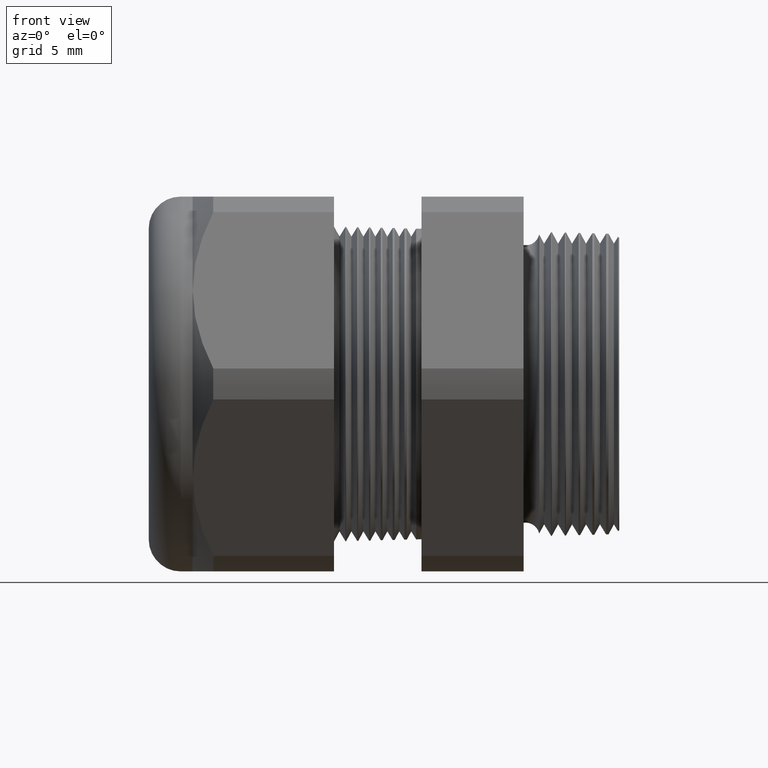
[diagram: clean part render]
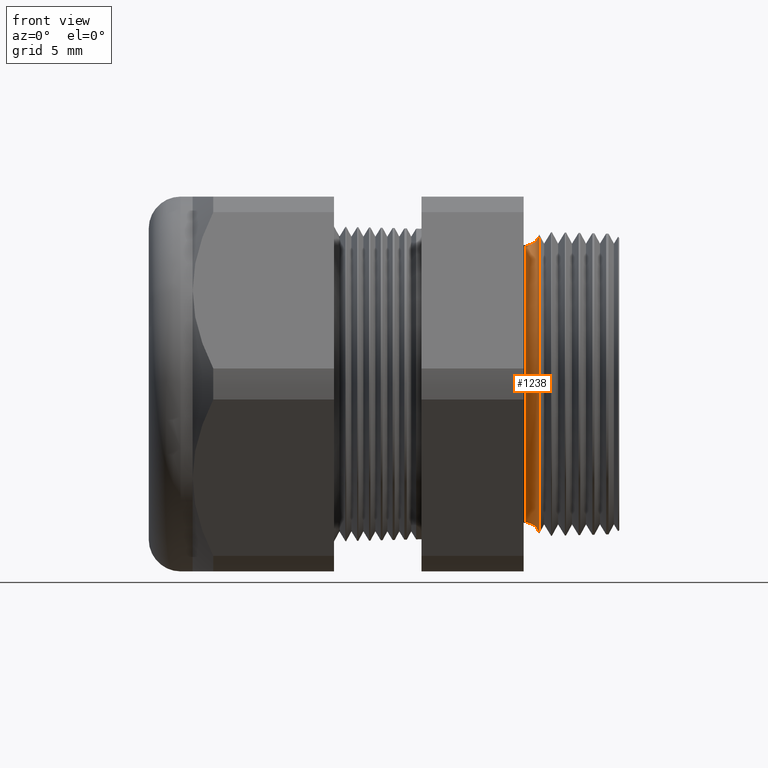
[diagram: same view with one face highlighted and labeled with its STEP entity id]
A machine part, front view. The second image highlights one B-rep face of the part: STEP entity #1238.
In plain terms, the highlighted toroidal blend (fillet) surface has major radius 9.7168 mm and minor (blend) radius 0.889 mm.
Its self-contained STEP definition (entity closure, byte-faithful):
#1168 = EDGE_CURVE ( 'NONE', #1169, #1227, #3360, .T. ) ;
#1169 = VERTEX_POINT ( 'NONE', #3355 ) ;
#1181 = ORIENTED_EDGE ( 'NONE', *, *, #1182, .T. ) ;
#1182 = EDGE_CURVE ( 'NONE', #1227, #1199, #3399, .T. ) ;
#1183 = ORIENTED_EDGE ( 'NONE', *, *, #1242, .F. ) ;
#1187 = EDGE_LOOP ( 'NONE', ( #1239, #1181, #1183, #1229 ) ) ;
#1198 = VERTEX_POINT ( 'NONE', #3376 ) ;
#1199 = VERTEX_POINT ( 'NONE', #3375 ) ;
#1227 = VERTEX_POINT ( 'NONE', #3446 ) ;
#1229 = ORIENTED_EDGE ( 'NONE', *, *, #1231, .F. ) ;
#1231 = EDGE_CURVE ( 'NONE', #1169, #1198, #3445, .T. ) ;
#1238 = ADVANCED_FACE ( 'NONE', ( #3491 ), #3490, .F. ) ;
#1239 = ORIENTED_EDGE ( 'NONE', *, *, #1168, .T. ) ;
#1242 = EDGE_CURVE ( 'NONE', #1198, #1199, #3485, .T. ) ;
#3355 = CARTESIAN_POINT ( 'NONE',  ( -0.2708463023710465100, 0.0000000000000000000, 0.3749001875325124200 ) ) ;
#3356 = DIRECTION ( 'NONE',  ( 0.0000000000000000000, 1.224646799147352700E-016, 1.000000000000000000 ) ) ;
#3357 = DIRECTION ( 'NONE',  ( 0.0000000000000000000, 1.000000000000000000, -1.224646799147353200E-016 ) ) ;
#3358 = CARTESIAN_POINT ( 'NONE',  ( -0.3049999999999999400, 4.684890578375549600E-017, 0.3825503468949049100 ) ) ;
#3359 = AXIS2_PLACEMENT_3D ( 'NONE', #3358, #3357, #3356 ) ;
#3360 = CIRCLE ( 'NONE', #3359, 0.03499999999999996900 ) ;
#3375 = CARTESIAN_POINT ( 'NONE',  ( -0.3049999999999999400, 0.0000000000000000000, -0.3475503468949049900 ) ) ;
#3376 = CARTESIAN_POINT ( 'NONE',  ( -0.2708463023710465100, 4.591203146614337800E-017, -0.3749001875325124200 ) ) ;
#3395 = DIRECTION ( 'NONE',  ( 0.0000000000000000000, 0.0000000000000000000, -1.000000000000000000 ) ) ;
#3396 = DIRECTION ( 'NONE',  ( 1.000000000000000000, 0.0000000000000000000, 0.0000000000000000000 ) ) ;
#3397 = CARTESIAN_POINT ( 'NONE',  ( -0.3049999999999999400, 0.0000000000000000000, 0.0000000000000000000 ) ) ;
#3398 = AXIS2_PLACEMENT_3D ( 'NONE', #3397, #3396, #3395 ) ;
#3399 = CIRCLE ( 'NONE', #3398, 0.3475503468949049900 ) ;
#3441 = DIRECTION ( 'NONE',  ( 0.0000000000000000000, 0.0000000000000000000, 1.000000000000000000 ) ) ;
#3442 = DIRECTION ( 'NONE',  ( 1.000000000000000000, 0.0000000000000000000, 0.0000000000000000000 ) ) ;
#3443 = CARTESIAN_POINT ( 'NONE',  ( -0.2708463023710465100, 0.0000000000000000000, 0.0000000000000000000 ) ) ;
#3444 = AXIS2_PLACEMENT_3D ( 'NONE', #3443, #3442, #3441 ) ;
#3445 = CIRCLE ( 'NONE', #3444, 0.3749001875325124200 ) ;
#3446 = CARTESIAN_POINT ( 'NONE',  ( -0.3049999999999999400, 4.256264198673976300E-017, 0.3475503468949049900 ) ) ;
#3481 = DIRECTION ( 'NONE',  ( 0.0000000000000000000, 0.0000000000000000000, -1.000000000000000000 ) ) ;
#3482 = DIRECTION ( 'NONE',  ( 0.0000000000000000000, -1.000000000000000000, 0.0000000000000000000 ) ) ;
#3483 = CARTESIAN_POINT ( 'NONE',  ( -0.3049999999999999400, 0.0000000000000000000, -0.3825503468949049100 ) ) ;
#3484 = AXIS2_PLACEMENT_3D ( 'NONE', #3483, #3482, #3481 ) ;
#3485 = CIRCLE ( 'NONE', #3484, 0.03499999999999996900 ) ;
#3486 = DIRECTION ( 'NONE',  ( 0.0000000000000000000, 0.0000000000000000000, -1.000000000000000000 ) ) ;
#3487 = DIRECTION ( 'NONE',  ( 1.000000000000000000, 0.0000000000000000000, 0.0000000000000000000 ) ) ;
#3488 = CARTESIAN_POINT ( 'NONE',  ( -0.3049999999999999400, 0.0000000000000000000, 0.0000000000000000000 ) ) ;
#3489 = AXIS2_PLACEMENT_3D ( 'NONE', #3488, #3487, #3486 ) ;
#3490 = TOROIDAL_SURFACE ( 'NONE', #3489, 0.3825503468949049100, 0.03499999999999994800 ) ;
#3491 = FACE_OUTER_BOUND ( 'NONE', #1187, .T. ) ;